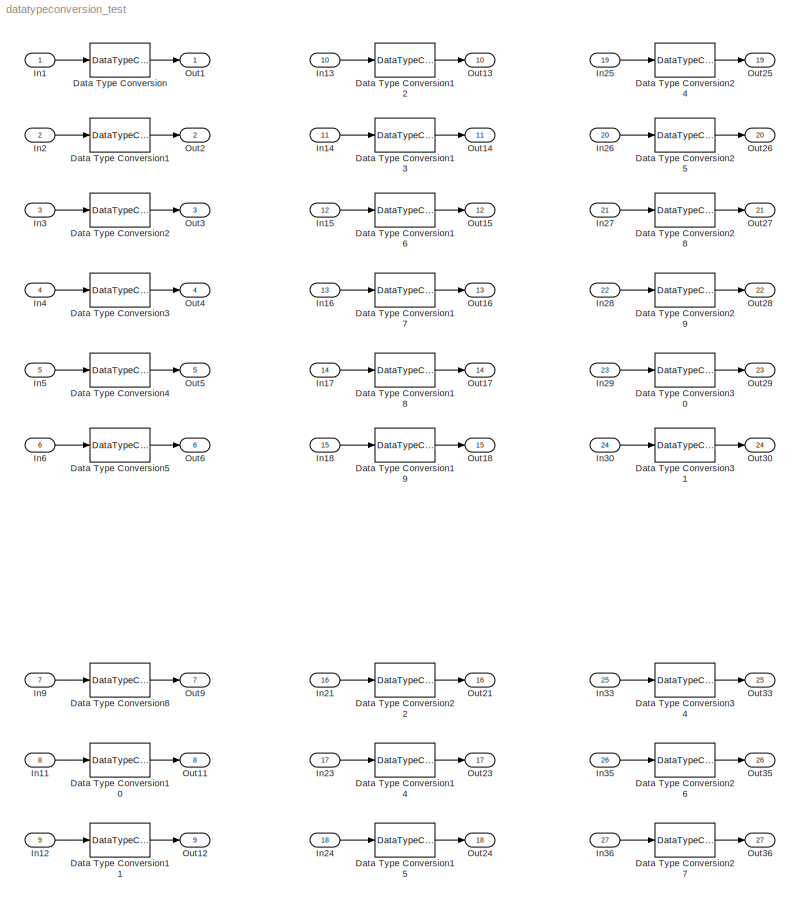
MODEL datatypeconversion_test
KIND model
BLOCK [DataTypeConversion] Data Type Conversion
  RndMeth = Floor
  SID = 112
  SaturateOnIntegerOverflow = off
BLOCK [DataTypeConversion] Data Type Conversion1
  OutDataTypeStr = single
  RndMeth = Floor
  SID = 113
  SaturateOnIntegerOverflow = off
BLOCK [DataTypeConversion] Data Type Conversion10
  OutDataTypeStr = fixdt(1,16,0)
  RndMeth = Floor
  SID = 151
  SaturateOnIntegerOverflow = off
BLOCK [DataTypeConversion] Data Type Conversion11
  OutDataTypeStr = fixdt(1,16,2^0,0)
  RndMeth = Floor
  SID = 152
  SaturateOnIntegerOverflow = off
BLOCK [DataTypeConversion] Data Type Conversion12
  RndMeth = Floor
  SID = 168
  SaturateOnIntegerOverflow = off
BLOCK [DataTypeConversion] Data Type Conversion13
  OutDataTypeStr = single
  RndMeth = Floor
  SID = 169
  SaturateOnIntegerOverflow = off
BLOCK [DataTypeConversion] Data Type Conversion14
  OutDataTypeStr = fixdt(1,16,0)
  RndMeth = Floor
  SID = 170
  SaturateOnIntegerOverflow = off
BLOCK [DataTypeConversion] Data Type Conversion15
  OutDataTypeStr = fixdt(1,16,2^0,0)
  RndMeth = Floor
  SID = 171
  SaturateOnIntegerOverflow = off
BLOCK [DataTypeConversion] Data Type Conversion16
  OutDataTypeStr = int8
  RndMeth = Floor
  SID = 172
  SaturateOnIntegerOverflow = off
BLOCK [DataTypeConversion] Data Type Conversion17
  OutDataTypeStr = uint8
  RndMeth = Floor
  SID = 173
  SaturateOnIntegerOverflow = off
BLOCK [DataTypeConversion] Data Type Conversion18
  OutDataTypeStr = int16
  RndMeth = Floor
  SID = 174
  SaturateOnIntegerOverflow = off
BLOCK [DataTypeConversion] Data Type Conversion19
  OutDataTypeStr = uint16
  RndMeth = Floor
  SID = 175
  SaturateOnIntegerOverflow = off
BLOCK [DataTypeConversion] Data Type Conversion2
  OutDataTypeStr = int8
  RndMeth = Floor
  SID = 114
  SaturateOnIntegerOverflow = off
BLOCK [DataTypeConversion] Data Type Conversion22
  OutDataTypeStr = boolean
  RndMeth = Floor
  SID = 178
  SaturateOnIntegerOverflow = off
BLOCK [DataTypeConversion] Data Type Conversion24
  RndMeth = Floor
  SID = 204
  SaturateOnIntegerOverflow = off
BLOCK [DataTypeConversion] Data Type Conversion25
  OutDataTypeStr = single
  RndMeth = Floor
  SID = 205
  SaturateOnIntegerOverflow = off
BLOCK [DataTypeConversion] Data Type Conversion26
  OutDataTypeStr = fixdt(1,16,0)
  RndMeth = Floor
  SID = 206
  SaturateOnIntegerOverflow = off
BLOCK [DataTypeConversion] Data Type Conversion27
  OutDataTypeStr = fixdt(1,16,2^0,0)
  RndMeth = Floor
  SID = 207
  SaturateOnIntegerOverflow = off
BLOCK [DataTypeConversion] Data Type Conversion28
  OutDataTypeStr = int8
  RndMeth = Floor
  SID = 208
  SaturateOnIntegerOverflow = off
BLOCK [DataTypeConversion] Data Type Conversion29
  OutDataTypeStr = uint8
  RndMeth = Floor
  SID = 209
  SaturateOnIntegerOverflow = off
BLOCK [DataTypeConversion] Data Type Conversion3
  OutDataTypeStr = uint8
  RndMeth = Floor
  SID = 116
  SaturateOnIntegerOverflow = off
BLOCK [DataTypeConversion] Data Type Conversion30
  OutDataTypeStr = int16
  RndMeth = Floor
  SID = 210
  SaturateOnIntegerOverflow = off
BLOCK [DataTypeConversion] Data Type Conversion31
  OutDataTypeStr = uint16
  RndMeth = Floor
  SID = 211
  SaturateOnIntegerOverflow = off
BLOCK [DataTypeConversion] Data Type Conversion34
  OutDataTypeStr = boolean
  RndMeth = Floor
  SID = 214
  SaturateOnIntegerOverflow = off
BLOCK [DataTypeConversion] Data Type Conversion4
  OutDataTypeStr = int16
  RndMeth = Floor
  SID = 136
  SaturateOnIntegerOverflow = off
BLOCK [DataTypeConversion] Data Type Conversion5
  OutDataTypeStr = uint16
  RndMeth = Floor
  SID = 137
  SaturateOnIntegerOverflow = off
BLOCK [DataTypeConversion] Data Type Conversion8
  OutDataTypeStr = boolean
  RndMeth = Floor
  SID = 145
  SaturateOnIntegerOverflow = off
BLOCK [Inport] In1
  IconDisplay = Port number
  OutDataTypeStr = double
  PortDimensions = 1
  SID = 1
BLOCK [Inport] In11
  IconDisplay = Port number
  OutDataTypeStr = double
  Port = 8
  PortDimensions = 1
  SID = 148
BLOCK [Inport] In12
  IconDisplay = Port number
  OutDataTypeStr = double
  Port = 9
  PortDimensions = 1
  SID = 149
BLOCK [Inport] In13
  IconDisplay = Port number
  OutDataTypeStr = single
  Port = 10
  PortDimensions = 1
  SID = 156
BLOCK [Inport] In14
  IconDisplay = Port number
  OutDataTypeStr = single
  Port = 11
  PortDimensions = 1
  SID = 157
BLOCK [Inport] In15
  IconDisplay = Port number
  OutDataTypeStr = single
  Port = 12
  PortDimensions = 1
  SID = 158
BLOCK [Inport] In16
  IconDisplay = Port number
  OutDataTypeStr = single
  Port = 13
  PortDimensions = 1
  SID = 159
BLOCK [Inport] In17
  IconDisplay = Port number
  OutDataTypeStr = single
  Port = 14
  PortDimensions = 1
  SID = 160
BLOCK [Inport] In18
  IconDisplay = Port number
  OutDataTypeStr = single
  Port = 15
  PortDimensions = 1
  SID = 161
BLOCK [Inport] In2
  IconDisplay = Port number
  OutDataTypeStr = double
  Port = 2
  PortDimensions = 1
  SID = 77
BLOCK [Inport] In21
  IconDisplay = Port number
  OutDataTypeStr = single
  Port = 16
  PortDimensions = 1
  SID = 164
BLOCK [Inport] In23
  IconDisplay = Port number
  OutDataTypeStr = single
  Port = 17
  PortDimensions = 1
  SID = 166
BLOCK [Inport] In24
  IconDisplay = Port number
  OutDataTypeStr = single
  Port = 18
  PortDimensions = 1
  SID = 167
BLOCK [Inport] In25
  IconDisplay = Port number
  OutDataTypeStr = int8
  Port = 19
  PortDimensions = 1
  SID = 192
BLOCK [Inport] In26
  IconDisplay = Port number
  OutDataTypeStr = int8
  Port = 20
  PortDimensions = 1
  SID = 193
BLOCK [Inport] In27
  IconDisplay = Port number
  OutDataTypeStr = int8
  Port = 21
  PortDimensions = 1
  SID = 194
BLOCK [Inport] In28
  IconDisplay = Port number
  OutDataTypeStr = int8
  Port = 22
  PortDimensions = 1
  SID = 195
BLOCK [Inport] In29
  IconDisplay = Port number
  OutDataTypeStr = int8
  Port = 23
  PortDimensions = 1
  SID = 196
BLOCK [Inport] In3
  IconDisplay = Port number
  OutDataTypeStr = double
  Port = 3
  PortDimensions = 1
  SID = 80
BLOCK [Inport] In30
  IconDisplay = Port number
  OutDataTypeStr = int8
  Port = 24
  PortDimensions = 1
  SID = 197
BLOCK [Inport] In33
  IconDisplay = Port number
  OutDataTypeStr = int8
  Port = 25
  PortDimensions = 1
  SID = 200
BLOCK [Inport] In35
  IconDisplay = Port number
  OutDataTypeStr = int8
  Port = 26
  PortDimensions = 1
  SID = 202
BLOCK [Inport] In36
  IconDisplay = Port number
  OutDataTypeStr = int8
  Port = 27
  PortDimensions = 1
  SID = 203
BLOCK [Inport] In4
  IconDisplay = Port number
  OutDataTypeStr = double
  Port = 4
  PortDimensions = 1
  SID = 89
BLOCK [Inport] In5
  IconDisplay = Port number
  OutDataTypeStr = double
  Port = 5
  PortDimensions = 1
  SID = 132
BLOCK [Inport] In6
  IconDisplay = Port number
  OutDataTypeStr = double
  Port = 6
  PortDimensions = 1
  SID = 133
BLOCK [Inport] In9
  IconDisplay = Port number
  OutDataTypeStr = double
  Port = 7
  PortDimensions = 1
  SID = 144
BLOCK [Outport] Out1
  IconDisplay = Port number
  SID = 55
BLOCK [Outport] Out11
  IconDisplay = Port number
  Port = 8
  SID = 154
BLOCK [Outport] Out12
  IconDisplay = Port number
  Port = 9
  SID = 155
BLOCK [Outport] Out13
  IconDisplay = Port number
  Port = 10
  SID = 180
BLOCK [Outport] Out14
  IconDisplay = Port number
  Port = 11
  SID = 181
BLOCK [Outport] Out15
  IconDisplay = Port number
  Port = 12
  SID = 182
BLOCK [Outport] Out16
  IconDisplay = Port number
  Port = 13
  SID = 183
BLOCK [Outport] Out17
  IconDisplay = Port number
  Port = 14
  SID = 184
BLOCK [Outport] Out18
  IconDisplay = Port number
  Port = 15
  SID = 185
BLOCK [Outport] Out2
  IconDisplay = Port number
  Port = 2
  SID = 79
BLOCK [Outport] Out21
  IconDisplay = Port number
  Port = 16
  SID = 188
BLOCK [Outport] Out23
  IconDisplay = Port number
  Port = 17
  SID = 190
BLOCK [Outport] Out24
  IconDisplay = Port number
  Port = 18
  SID = 191
BLOCK [Outport] Out25
  IconDisplay = Port number
  Port = 19
  SID = 216
BLOCK [Outport] Out26
  IconDisplay = Port number
  Port = 20
  SID = 217
BLOCK [Outport] Out27
  IconDisplay = Port number
  Port = 21
  SID = 218
BLOCK [Outport] Out28
  IconDisplay = Port number
  Port = 22
  SID = 219
BLOCK [Outport] Out29
  IconDisplay = Port number
  Port = 23
  SID = 220
BLOCK [Outport] Out3
  IconDisplay = Port number
  Port = 3
  SID = 82
BLOCK [Outport] Out30
  IconDisplay = Port number
  Port = 24
  SID = 221
BLOCK [Outport] Out33
  IconDisplay = Port number
  Port = 25
  SID = 224
BLOCK [Outport] Out35
  IconDisplay = Port number
  Port = 26
  SID = 226
BLOCK [Outport] Out36
  IconDisplay = Port number
  Port = 27
  SID = 227
BLOCK [Outport] Out4
  IconDisplay = Port number
  Port = 4
  SID = 97
BLOCK [Outport] Out5
  IconDisplay = Port number
  Port = 5
  SID = 140
BLOCK [Outport] Out6
  IconDisplay = Port number
  Port = 6
  SID = 141
BLOCK [Outport] Out9
  IconDisplay = Port number
  Port = 7
  SID = 146
LINE Data Type Conversion10:1 -> Out11:1
LINE Data Type Conversion11:1 -> Out12:1
LINE Data Type Conversion12:1 -> Out13:1
LINE Data Type Conversion13:1 -> Out14:1
LINE Data Type Conversion14:1 -> Out23:1
LINE Data Type Conversion15:1 -> Out24:1
LINE Data Type Conversion16:1 -> Out15:1
LINE Data Type Conversion17:1 -> Out16:1
LINE Data Type Conversion18:1 -> Out17:1
LINE Data Type Conversion19:1 -> Out18:1
LINE Data Type Conversion1:1 -> Out2:1
LINE Data Type Conversion22:1 -> Out21:1
LINE Data Type Conversion24:1 -> Out25:1
LINE Data Type Conversion25:1 -> Out26:1
LINE Data Type Conversion26:1 -> Out35:1
LINE Data Type Conversion27:1 -> Out36:1
LINE Data Type Conversion28:1 -> Out27:1
LINE Data Type Conversion29:1 -> Out28:1
LINE Data Type Conversion2:1 -> Out3:1
LINE Data Type Conversion30:1 -> Out29:1
LINE Data Type Conversion31:1 -> Out30:1
LINE Data Type Conversion34:1 -> Out33:1
LINE Data Type Conversion3:1 -> Out4:1
LINE Data Type Conversion4:1 -> Out5:1
LINE Data Type Conversion5:1 -> Out6:1
LINE Data Type Conversion8:1 -> Out9:1
LINE Data Type Conversion:1 -> Out1:1
LINE In11:1 -> Data Type Conversion10:1
LINE In12:1 -> Data Type Conversion11:1
LINE In13:1 -> Data Type Conversion12:1
LINE In14:1 -> Data Type Conversion13:1
LINE In15:1 -> Data Type Conversion16:1
LINE In16:1 -> Data Type Conversion17:1
LINE In17:1 -> Data Type Conversion18:1
LINE In18:1 -> Data Type Conversion19:1
LINE In1:1 -> Data Type Conversion:1
LINE In21:1 -> Data Type Conversion22:1
LINE In23:1 -> Data Type Conversion14:1
LINE In24:1 -> Data Type Conversion15:1
LINE In25:1 -> Data Type Conversion24:1
LINE In26:1 -> Data Type Conversion25:1
LINE In27:1 -> Data Type Conversion28:1
LINE In28:1 -> Data Type Conversion29:1
LINE In29:1 -> Data Type Conversion30:1
LINE In2:1 -> Data Type Conversion1:1
LINE In30:1 -> Data Type Conversion31:1
LINE In33:1 -> Data Type Conversion34:1
LINE In35:1 -> Data Type Conversion26:1
LINE In36:1 -> Data Type Conversion27:1
LINE In3:1 -> Data Type Conversion2:1
LINE In4:1 -> Data Type Conversion3:1
LINE In5:1 -> Data Type Conversion4:1
LINE In6:1 -> Data Type Conversion5:1
LINE In9:1 -> Data Type Conversion8:1
